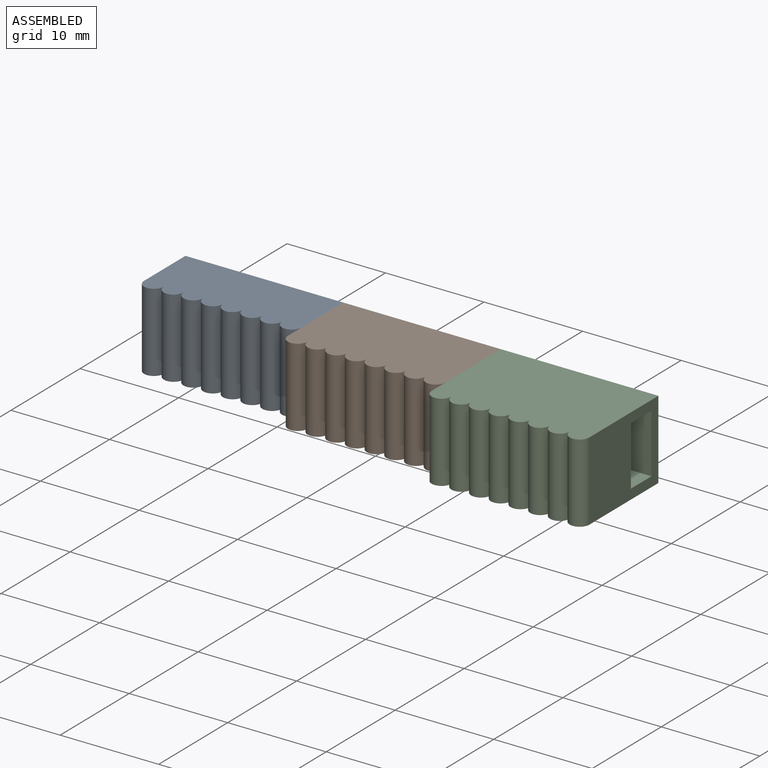
[diagram: assembled view]
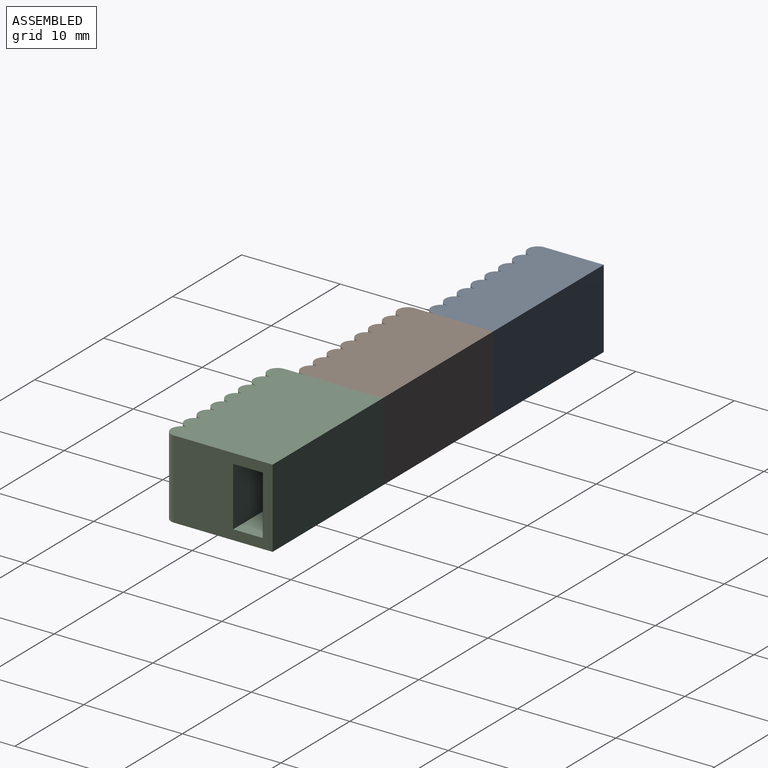
[diagram: assembled view, second angle]
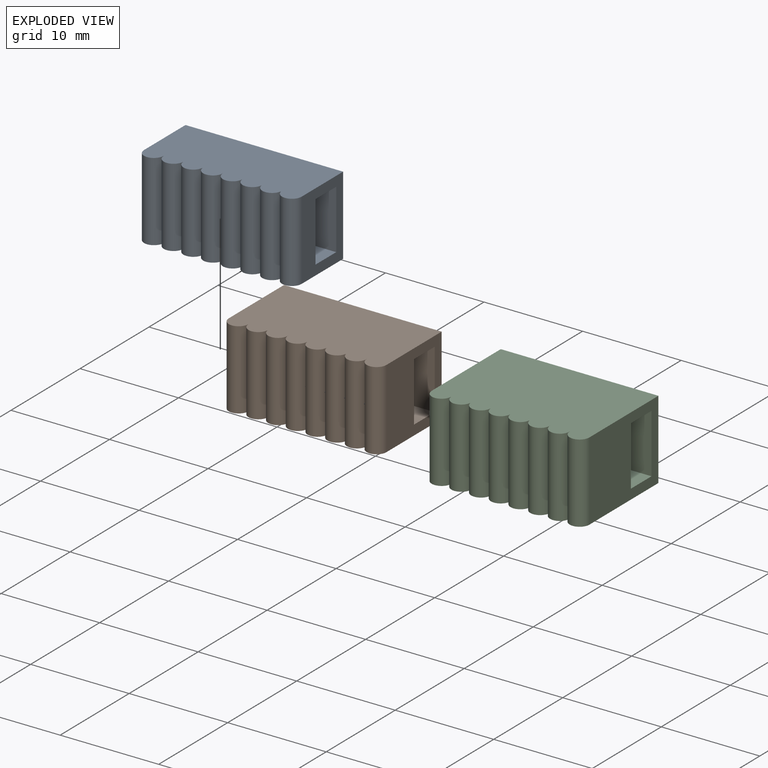
[diagram: exploded view]
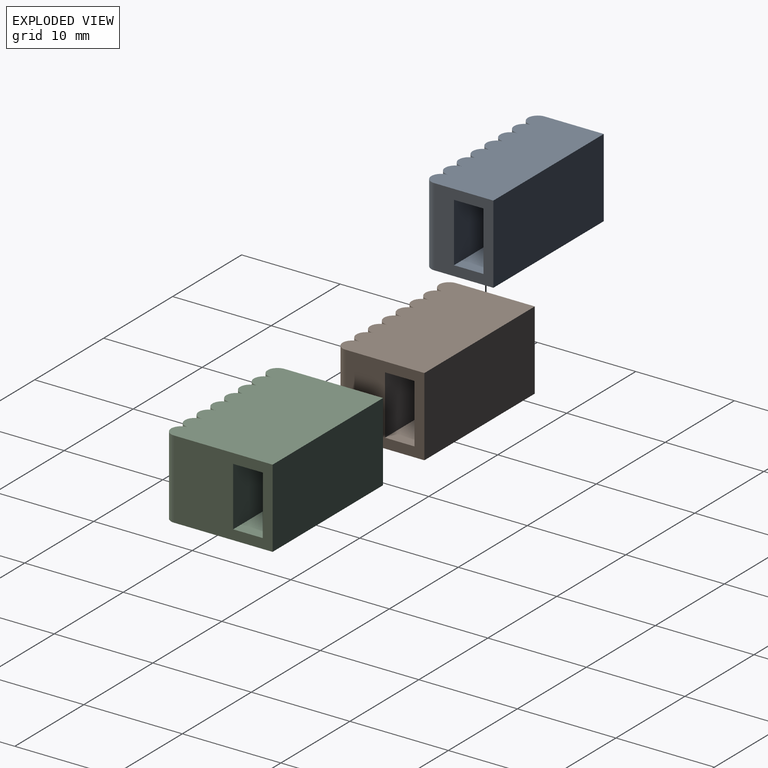
[diagram: exploded view, second angle]
ASSEMBLY  parts=3 mates=3
PART A: 17 faces, bbox 16x7x8 mm
  f0: plane 16x8mm, normal (0,1,0), area 128mm2, adj f1,f6,f7,f16
  f1: plane 8x6mm, normal (-1,0,0), area 30mm2, adj f0,f2,f6,f7,f8,f9,f10,f11
  f2: cylinder r=1mm len=8mm, axis (0,0,-1), area 25.1mm2, adj f1,f3,f6,f7
  f3: cylinder r=1mm len=8mm, axis (0,0,-1), area 25.1mm2, adj f2,f4,f6,f7
  f4: cylinder r=1mm len=8mm, axis (0,0,-1), area 25.1mm2, adj f3,f5,f6,f7
  f5: cylinder r=1mm len=8mm, axis (0,0,-1), area 25.1mm2, adj f4,f6,f7,f12
  f6: plane 16x7mm, normal (0,0,1), area 108.6mm2, adj f0,f1,f2,f3,f4,f5,f12,f13
  f7: plane 16x7mm, normal (0,0,-1), area 108.6mm2, adj f0,f1,f2,f3,f4,f5,f12,f13
  f8: plane 16x6mm, normal (0,-1,0), area 96mm2, adj f1,f9,f11,f16
  f9: plane 16x3mm, normal (0,0,-1), area 48mm2, adj f1,f8,f10,f16
  f10: plane 16x6mm, normal (0,1,0), area 96mm2, adj f1,f9,f11,f16
  f11: plane 16x3mm, normal (0,0,1), area 48mm2, adj f1,f8,f10,f16
  f12: cylinder r=1mm len=8mm, axis (0,0,-1), area 25.1mm2, adj f5,f6,f7,f13
  f13: cylinder r=1mm len=8mm, axis (0,0,-1), area 25.1mm2, adj f6,f7,f12,f14
  f14: cylinder r=1mm len=8mm, axis (0,0,-1), area 25.1mm2, adj f6,f7,f13,f15
  f15: cylinder r=1mm len=8mm, axis (0,0,-1), area 25.1mm2, adj f6,f7,f14,f16
  f16: plane 8x6mm, normal (1,0,0), area 30mm2, adj f0,f6,f7,f8,f9,f10,f11,f15
PART B: 17 faces, bbox 16x9x8 mm
  f0: plane 16x8mm, normal (0,1,0), area 128mm2, adj f1,f6,f7,f16
  f1: plane 8x8mm, normal (-1,0,0), area 46mm2, adj f0,f2,f6,f7,f8,f9,f10,f11
  f2: cylinder r=1mm len=8mm, axis (0,0,-1), area 25.1mm2, adj f1,f3,f6,f7
  f3: cylinder r=1mm len=8mm, axis (0,0,-1), area 25.1mm2, adj f2,f4,f6,f7
  f4: cylinder r=1mm len=8mm, axis (0,0,-1), area 25.1mm2, adj f3,f5,f6,f7
  f5: cylinder r=1mm len=8mm, axis (0,0,-1), area 25.1mm2, adj f4,f6,f7,f12
  f6: plane 16x9mm, normal (0,0,1), area 140.6mm2, adj f0,f1,f2,f3,f4,f5,f12,f13
  f7: plane 16x9mm, normal (0,0,-1), area 140.6mm2, adj f0,f1,f2,f3,f4,f5,f12,f13
  f8: plane 16x6mm, normal (0,-1,0), area 96mm2, adj f1,f9,f11,f16
  f9: plane 16x3mm, normal (0,0,-1), area 48mm2, adj f1,f8,f10,f16
  f10: plane 16x6mm, normal (0,1,0), area 96mm2, adj f1,f9,f11,f16
  f11: plane 16x3mm, normal (0,0,1), area 48mm2, adj f1,f8,f10,f16
  f12: cylinder r=1mm len=8mm, axis (0,0,-1), area 25.1mm2, adj f5,f6,f7,f13
  f13: cylinder r=1mm len=8mm, axis (0,0,-1), area 25.1mm2, adj f6,f7,f12,f14
  f14: cylinder r=1mm len=8mm, axis (0,0,-1), area 25.1mm2, adj f6,f7,f13,f15
  f15: cylinder r=1mm len=8mm, axis (0,0,-1), area 25.1mm2, adj f6,f7,f14,f16
  f16: plane 8x8mm, normal (1,0,0), area 46mm2, adj f0,f6,f7,f8,f9,f10,f11,f15
PART C: 17 faces, bbox 16x11x8 mm
  f0: plane 16x8mm, normal (0,1,0), area 128mm2, adj f1,f6,f7,f16
  f1: plane 10x8mm, normal (-1,0,0), area 62mm2, adj f0,f2,f6,f7,f8,f9,f10,f11
  f2: cylinder r=1mm len=8mm, axis (0,0,-1), area 25.1mm2, adj f1,f3,f6,f7
  f3: cylinder r=1mm len=8mm, axis (0,0,-1), area 25.1mm2, adj f2,f4,f6,f7
  f4: cylinder r=1mm len=8mm, axis (0,0,-1), area 25.1mm2, adj f3,f5,f6,f7
  f5: cylinder r=1mm len=8mm, axis (0,0,-1), area 25.1mm2, adj f4,f6,f7,f12
  f6: plane 16x11mm, normal (0,0,1), area 172.6mm2, adj f0,f1,f2,f3,f4,f5,f12,f13
  f7: plane 16x11mm, normal (0,0,-1), area 172.6mm2, adj f0,f1,f2,f3,f4,f5,f12,f13
  f8: plane 16x6mm, normal (0,-1,0), area 96mm2, adj f1,f9,f11,f16
  f9: plane 16x3mm, normal (0,0,-1), area 48mm2, adj f1,f8,f10,f16
  f10: plane 16x6mm, normal (0,1,0), area 96mm2, adj f1,f9,f11,f16
  f11: plane 16x3mm, normal (0,0,1), area 48mm2, adj f1,f8,f10,f16
  f12: cylinder r=1mm len=8mm, axis (0,0,-1), area 25.1mm2, adj f5,f6,f7,f13
  f13: cylinder r=1mm len=8mm, axis (0,0,-1), area 25.1mm2, adj f6,f7,f12,f14
  f14: cylinder r=1mm len=8mm, axis (0,0,-1), area 25.1mm2, adj f6,f7,f13,f15
  f15: cylinder r=1mm len=8mm, axis (0,0,-1), area 25.1mm2, adj f6,f7,f14,f16
  f16: plane 10x8mm, normal (1,0,0), area 62mm2, adj f0,f6,f7,f8,f9,f10,f11,f15
PLACE A at identity
PLACE B t=(16,20,0)mm
PLACE C t=(32,40,0)mm
MATE parallel C.f6 <-> B.f6  axis (0,0,1) through (50.1,29.44,8)mm
MATE parallel A.f6 <-> A.f6  axis (0,0,-1) through (18.1,29.44,8)mm
MATE parallel B.f6 <-> A.f6  axis (0,0,-1) through (34.1,29.44,8)mm
